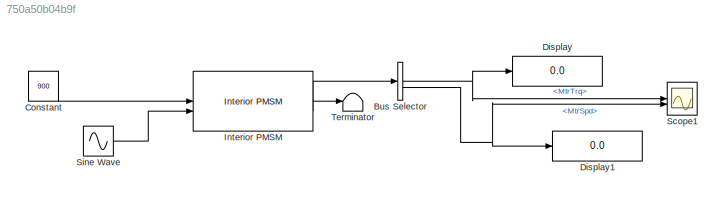
MODEL slx_750a50b04b9f
KIND model
CONFIG AbsTol = auto
CONFIG EnableMultiTasking = off
CONFIG FixedStep = auto
CONFIG MaxStep = auto
CONFIG MinStep = auto
CONFIG RelTol = 1e-3
CONFIG SampleTimeConstraint = Unconstrained
CONFIG SolverName = VariableStepAuto
CONFIG StartTime = 0.0
CONFIG StopTime = 10.0
BLOCK [BusSelector] Bus Selector
  OutputSignals = MtrTrq,MtrSpd
BLOCK [Constant] Constant
  Value = 900
BLOCK [Display] Display
  Decimation = 1
BLOCK [Display] Display1
  Decimation = 1
BLOCK [Reference] Interior PMSM  REF=autolibpmsminterior/Interior PMSM
  LibrarySourceBlock = mcblib/Electrical Systems/Motors/Interior PMSM
  SourceBlock = autolibpmsminterior/Interior PMSM
  SourceType = Interior PMSM
BLOCK [Scope] Scope1
  ActiveDisplayYMaximum = 67.16514409158286
  ActiveDisplayYMinimum = -18.286695629117879
  DataLoggingVariableName = ScopeData1
  Floating = off
  GraphicalSettings = {"Style":{"BackgroundColor":[0.12941176470588237,0.12941176470588237,0.12941176470588237],"AxesColor":[0.07058823529411765,0.07058823529411765,0.07058823529411765],"LabelsColor":[0.8509803921568627,0.8509803921568627,0.8509803921568627],"PreserveColors":false,"Visible":[true,true],"LineStyle":["-","-"],"LineWidth":[1.5,1.5],"BarWidth":[0.9,0.9],"LineColor":[[0,1,1],"auto"],"LineFaceAlpha":[1,1],"L...<+2391ch>
  LayoutDimensionsString = [2, 1]
  MultipleDisplayCache = [{"MaxYLimMag":2214.045460938341,"MaxYLimReal":67.16514409158286,"MinYLimMag":0,"MinYLimReal":-18.286695629117879,"PlotAsMagnitudePhase":false,"ShowGrid":true,"ShowLegend":false,"Title":"%<SignalLabel>","YLabel":""},{"MaxYLimMag":2214.045460938341,"MaxYLimReal":67.16514409158286,"MinYLimMag":0,"MinYLimReal":-18.286695629117879,"PlotAsMagnitudePhase":false,"ShowGrid":true,"ShowLegend":false,"Title"...<+31ch>
  NumInputPorts = 2
  ScopeFrameLocation = window
  WasSavedAsWebScope = on
  WindowPosition = [1.000000,49.000000,1536.000000,889.000000,]
BLOCK [Sin] Sine Wave
  Amplitude = 50
  Frequency = 90
  Phase = [0, -2*pi/3, -4*pi/3]
  SampleTime = 0
BLOCK [Terminator] Terminator
NET Bus Selector:1 -> Display:1, Scope1:1
NET Bus Selector:2 -> Display1:1, Scope1:2
LINE Constant:1 -> Interior PMSM:1
LINE Interior PMSM:1 -> Bus Selector:1
LINE Interior PMSM:2 -> Terminator:1
LINE Sine Wave:1 -> Interior PMSM:2
note: NET lines group one-source signal fan-out (src -> all destinations, sorted); 1:1 wires keep LINE
